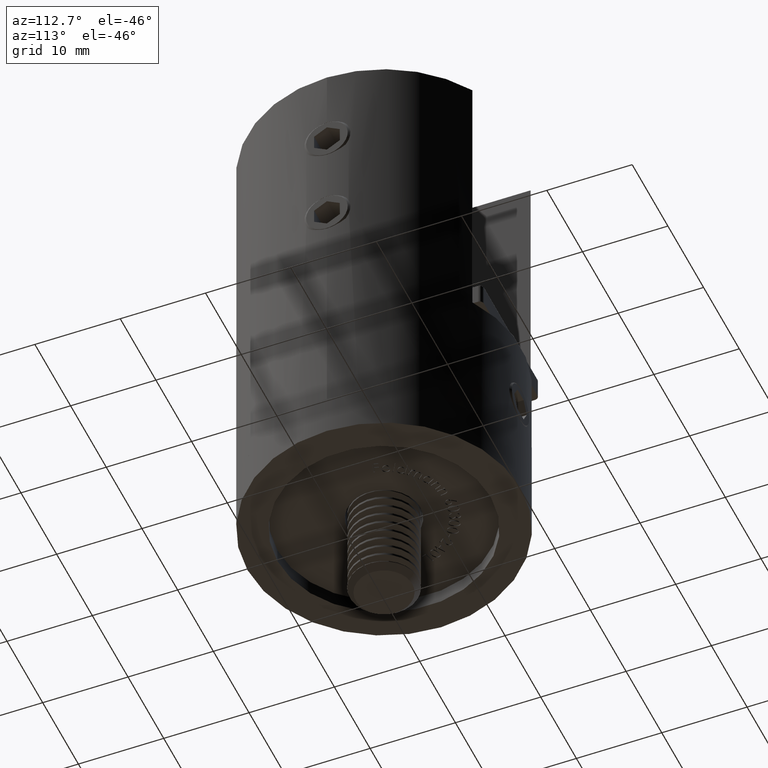
[diagram: clean part render]
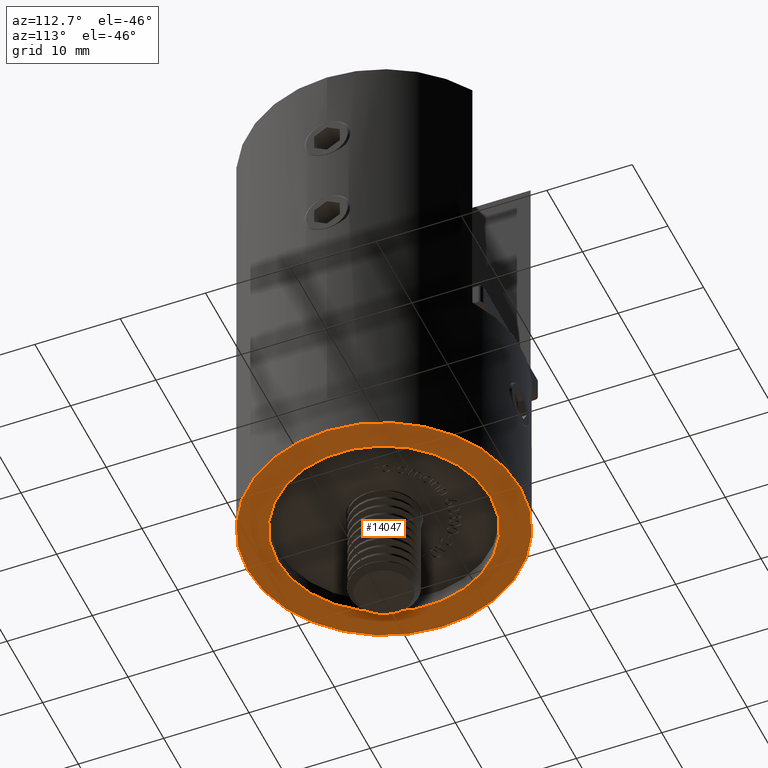
[diagram: same view with one face highlighted and labeled with its STEP entity id]
A machine part, auxiliary view. The second image highlights one B-rep face of the part: STEP entity #14047.
In plain terms, the highlighted planar face has unit normal (-0, 0, -1).
Its self-contained STEP definition (entity closure, byte-faithful):
#1336 = DIRECTION ( 'NONE',  ( -0.000000000000000000, -1.000000000000000000, -0.000000000000000000 ) ) ;
#3100 = EDGE_CURVE ( 'NONE', #17081, #17081, #17457, .T. ) ;
#3242 = VERTEX_POINT ( 'NONE', #18252 ) ;
#3716 = CARTESIAN_POINT ( 'NONE',  ( 0.000000000000000000, 0.000000000000000000, 0.000000000000000000 ) ) ;
#7023 = CARTESIAN_POINT ( 'NONE',  ( 0.000000000000000000, 0.000000000000000000, -16.00000000000000000 ) ) ;
#7308 = ORIENTED_EDGE ( 'NONE', *, *, #3100, .T. ) ;
#8148 = AXIS2_PLACEMENT_3D ( 'NONE', #3716, #11645, #17944 ) ;
#8263 = ORIENTED_EDGE ( 'NONE', *, *, #19996, .F. ) ;
#8295 = FACE_BOUND ( 'NONE', #11581, .T. ) ;
#8967 = CIRCLE ( 'NONE', #8148, 12.50000000000000000 ) ;
#11581 = EDGE_LOOP ( 'NONE', ( #8263 ) ) ;
#11645 = DIRECTION ( 'NONE',  ( 0.000000000000000000, -1.000000000000000000, 0.000000000000000000 ) ) ;
#11998 = DIRECTION ( 'NONE',  ( 0.000000000000000000, -1.000000000000000000, -0.000000000000000000 ) ) ;
#13050 = AXIS2_PLACEMENT_3D ( 'NONE', #20294, #1336, #20218 ) ;
#13450 = DIRECTION ( 'NONE',  ( 0.000000000000000000, 0.000000000000000000, -1.000000000000000000 ) ) ;
#14047 = ADVANCED_FACE ( 'NONE', ( #8295, #20355 ), #15114, .T. ) ;
#15041 = CARTESIAN_POINT ( 'NONE',  ( 0.000000000000000000, 0.000000000000000000, 0.000000000000000000 ) ) ;
#15114 = PLANE ( 'NONE',  #16023 ) ;
#16023 = AXIS2_PLACEMENT_3D ( 'NONE', #15041, #11998, #13450 ) ;
#17081 = VERTEX_POINT ( 'NONE', #7023 ) ;
#17457 = CIRCLE ( 'NONE', #13050, 16.00000000000000000 ) ;
#17944 = DIRECTION ( 'NONE',  ( 0.000000000000000000, 0.000000000000000000, -1.000000000000000000 ) ) ;
#18252 = CARTESIAN_POINT ( 'NONE',  ( 0.000000000000000000, 0.000000000000000000, -12.50000000000000000 ) ) ;
#19725 = EDGE_LOOP ( 'NONE', ( #7308 ) ) ;
#19996 = EDGE_CURVE ( 'NONE', #3242, #3242, #8967, .T. ) ;
#20218 = DIRECTION ( 'NONE',  ( 0.000000000000000000, 0.000000000000000000, -1.000000000000000000 ) ) ;
#20294 = CARTESIAN_POINT ( 'NONE',  ( 0.000000000000000000, 0.000000000000000000, 0.000000000000000000 ) ) ;
#20355 = FACE_OUTER_BOUND ( 'NONE', #19725, .T. ) ;